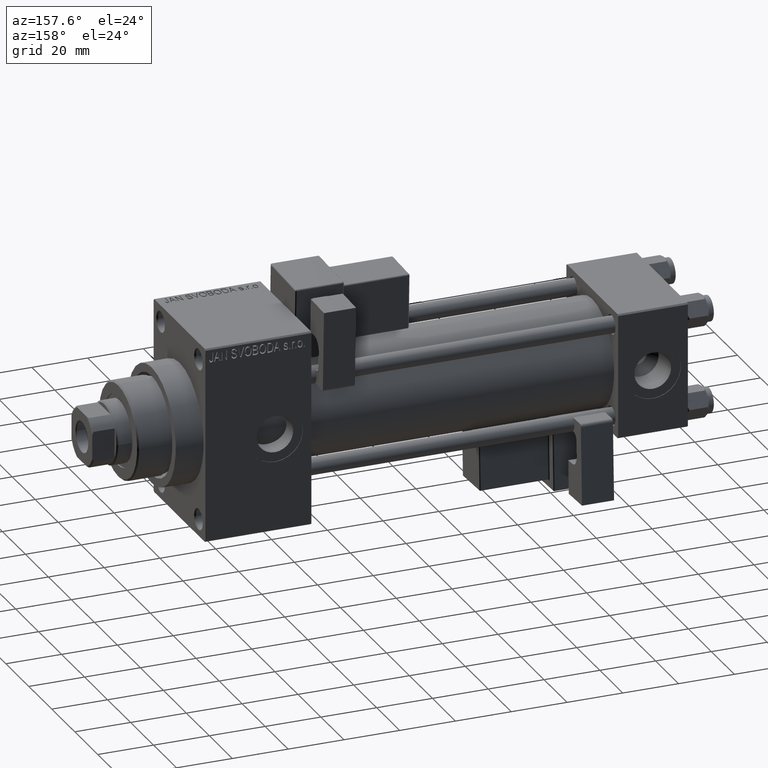
[diagram: clean part render]
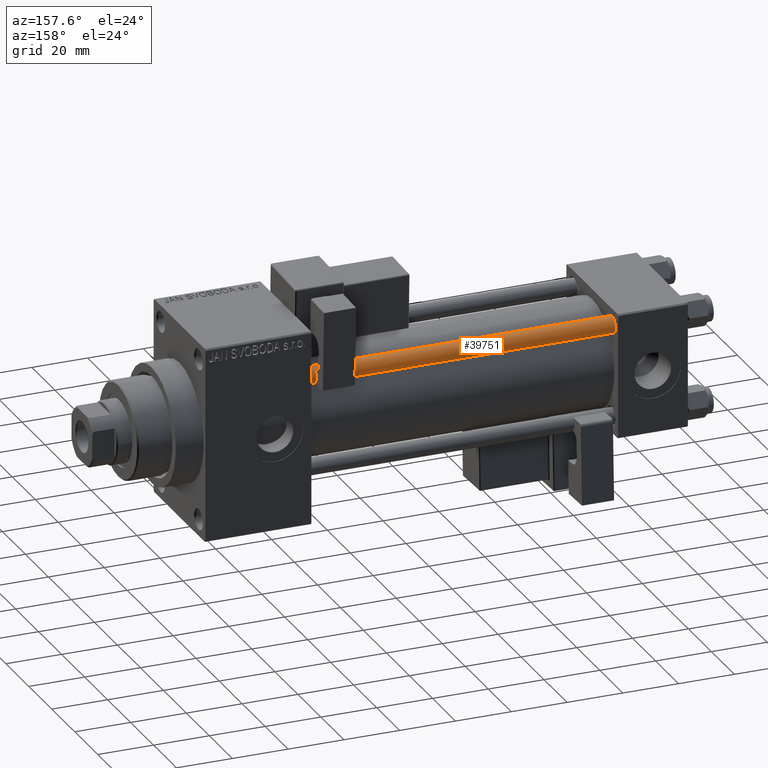
[diagram: same view with one face highlighted and labeled with its STEP entity id]
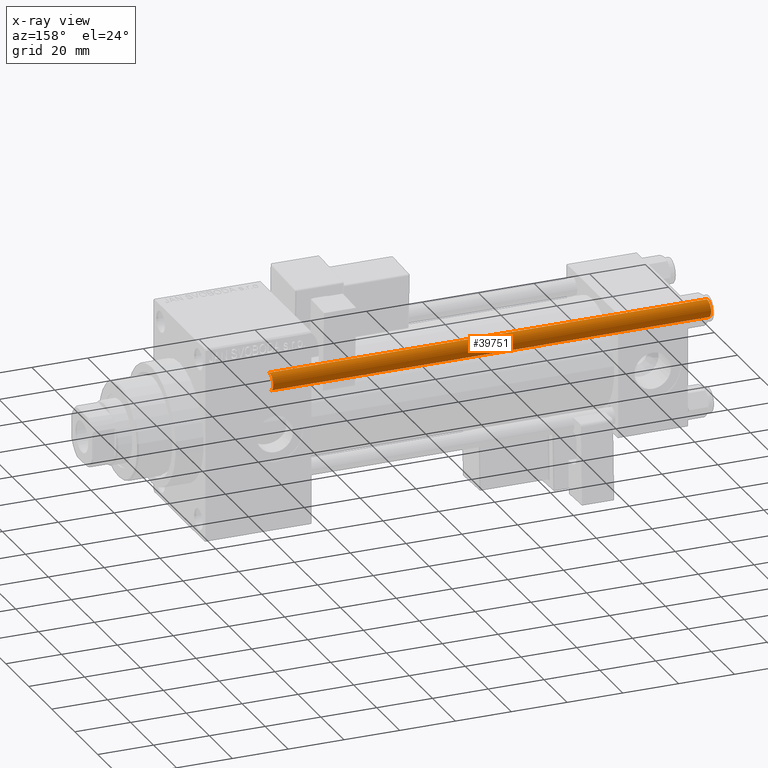
[diagram: x-ray of the same camera — body ghosted, the highlighted face saturated]
A machine part, auxiliary view. The second image highlights one B-rep face of the part: STEP entity #39751.
The next image is the same camera in x-ray: the body ghosted, the highlighted face saturated — about 0% of this face is hidden behind the body in this view.
In plain terms, the highlighted cylindrical surface (edge-blend (fillet) strip) has radius 3 mm, axis along (-1, -0, 0).
Its self-contained STEP definition (entity closure, byte-faithful):
#898 = DIRECTION ( 'NONE',  ( -1.000000000000000000, 0.000000000000000000, 0.000000000000000000 ) ) ;
#2696 = EDGE_CURVE ( 'NONE', #20235, #26132, #15197, .T. ) ;
#4863 = AXIS2_PLACEMENT_3D ( 'NONE', #8039, #39984, #39722 ) ;
#5081 = VECTOR ( 'NONE', #46892, 1000.000000000000000 ) ;
#5582 = FACE_OUTER_BOUND ( 'NONE', #13067, .T. ) ;
#6788 = DIRECTION ( 'NONE',  ( -0.000000000000000000, -0.000000000000000000, -1.000000000000000000 ) ) ;
#8039 = CARTESIAN_POINT ( 'NONE',  ( 0.000000000000000000, 0.000000000000000000, 157.5000000000000000 ) ) ;
#8703 = EDGE_CURVE ( 'NONE', #44077, #36317, #50187, .T. ) ;
#9995 = CIRCLE ( 'NONE', #24931, 3.000000000000000444 ) ;
#10068 = EDGE_CURVE ( 'NONE', #44077, #20235, #10686, .T. ) ;
#10432 = CARTESIAN_POINT ( 'NONE',  ( -3.000000000000000444, 0.000000000000000000, 158.0000000000000000 ) ) ;
#10686 = CIRCLE ( 'NONE', #4863, 3.000000000000000444 ) ;
#13067 = EDGE_LOOP ( 'NONE', ( #32251, #24105, #16858, #43761 ) ) ;
#15197 = LINE ( 'NONE', #18815, #5081 ) ;
#16858 = ORIENTED_EDGE ( 'NONE', *, *, #26435, .T. ) ;
#18044 = CARTESIAN_POINT ( 'NONE',  ( 3.000000000000000444, 3.673940397442060361E-16, 0.5000000000000281997 ) ) ;
#18815 = CARTESIAN_POINT ( 'NONE',  ( 3.000000000000000444, 3.673940397442060361E-16, 158.0000000000000000 ) ) ;
#18935 = VECTOR ( 'NONE', #6788, 1000.000000000000000 ) ;
#20235 = VERTEX_POINT ( 'NONE', #22789 ) ;
#22789 = CARTESIAN_POINT ( 'NONE',  ( 3.000000000000000444, 3.673940397442060361E-16, 157.5000000000000000 ) ) ;
#24105 = ORIENTED_EDGE ( 'NONE', *, *, #2696, .T. ) ;
#24650 = CARTESIAN_POINT ( 'NONE',  ( -3.000000000000000444, 0.000000000000000000, 157.5000000000000000 ) ) ;
#24931 = AXIS2_PLACEMENT_3D ( 'NONE', #36449, #29174, #28900 ) ;
#26132 = VERTEX_POINT ( 'NONE', #18044 ) ;
#26435 = EDGE_CURVE ( 'NONE', #26132, #36317, #9995, .T. ) ;
#28900 = DIRECTION ( 'NONE',  ( 1.000000000000000000, 0.000000000000000000, 0.000000000000000000 ) ) ;
#29174 = DIRECTION ( 'NONE',  ( -0.000000000000000000, -0.000000000000000000, 1.000000000000000000 ) ) ;
#29219 = CARTESIAN_POINT ( 'NONE',  ( 0.000000000000000000, 0.000000000000000000, 158.0000000000000000 ) ) ;
#32251 = ORIENTED_EDGE ( 'NONE', *, *, #10068, .T. ) ;
#36317 = VERTEX_POINT ( 'NONE', #50412 ) ;
#36449 = CARTESIAN_POINT ( 'NONE',  ( 0.000000000000000000, 0.000000000000000000, 0.5000000000000281997 ) ) ;
#39722 = DIRECTION ( 'NONE',  ( 1.000000000000000000, 0.000000000000000000, 0.000000000000000000 ) ) ;
#39751 = ADVANCED_FACE ( 'NONE', ( #5582 ), #48455, .T. ) ;
#39984 = DIRECTION ( 'NONE',  ( 0.000000000000000000, 0.000000000000000000, -1.000000000000000000 ) ) ;
#43761 = ORIENTED_EDGE ( 'NONE', *, *, #8703, .F. ) ;
#44077 = VERTEX_POINT ( 'NONE', #24650 ) ;
#44544 = DIRECTION ( 'NONE',  ( -0.000000000000000000, -0.000000000000000000, -1.000000000000000000 ) ) ;
#46892 = DIRECTION ( 'NONE',  ( -0.000000000000000000, -0.000000000000000000, -1.000000000000000000 ) ) ;
#48455 = CYLINDRICAL_SURFACE ( 'NONE', #51002, 3.000000000000000444 ) ;
#50187 = LINE ( 'NONE', #10432, #18935 ) ;
#50412 = CARTESIAN_POINT ( 'NONE',  ( -3.000000000000000444, 0.000000000000000000, 0.5000000000000281997 ) ) ;
#51002 = AXIS2_PLACEMENT_3D ( 'NONE', #29219, #44544, #898 ) ;